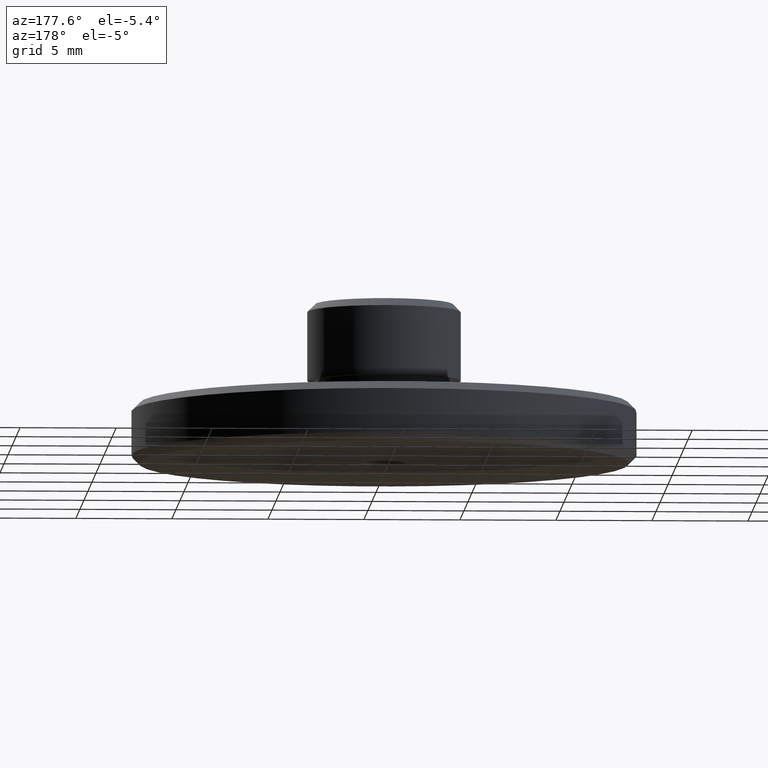
[diagram: clean part render]
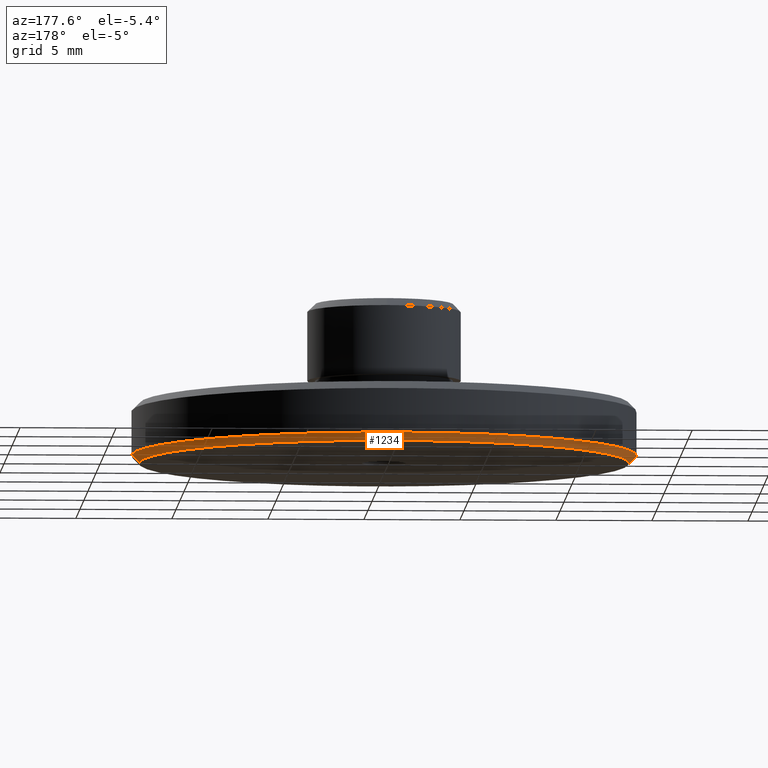
[diagram: same view with one face highlighted and labeled with its STEP entity id]
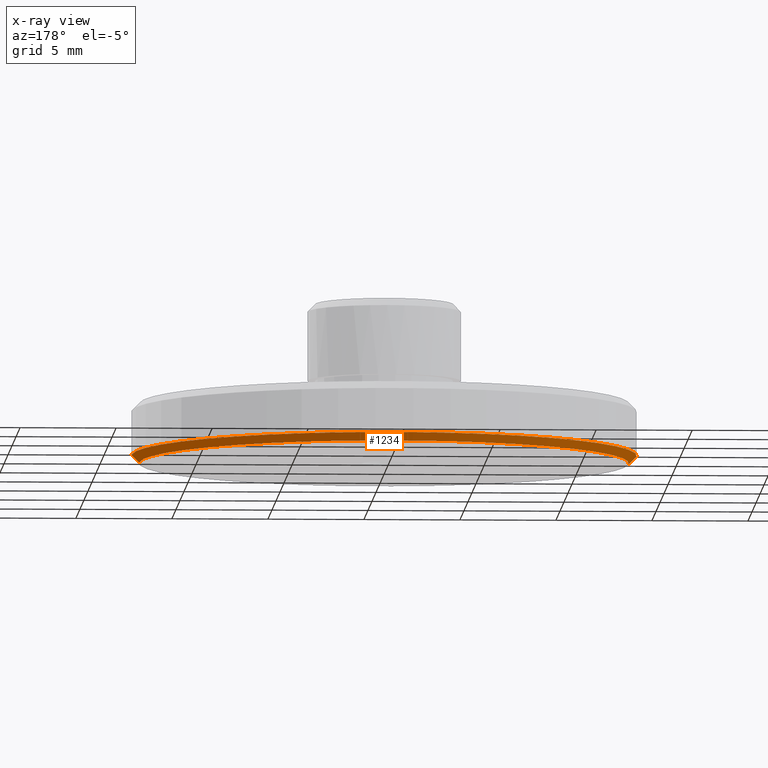
[diagram: x-ray of the same camera — body ghosted, the highlighted face saturated]
A machine part, auxiliary view. The second image highlights one B-rep face of the part: STEP entity #1234.
The next image is the same camera in x-ray: the body ghosted, the highlighted face saturated — about 0% of this face is hidden behind the body in this view.
In plain terms, the highlighted conical surface has half-angle 45 deg.
Its self-contained STEP definition (entity closure, byte-faithful):
#29 = EDGE_CURVE ( 'NONE', #569, #942, #920, .T. ) ;
#39 = EDGE_LOOP ( 'NONE', ( #298, #60, #1151, #215 ) ) ;
#60 = ORIENTED_EDGE ( 'NONE', *, *, #738, .T. ) ;
#95 = VECTOR ( 'NONE', #1338, 1000.000000000000000 ) ;
#169 = DIRECTION ( 'NONE',  ( -0.7071067811865469066, 8.659560562354925463E-17, 0.7071067811865482389 ) ) ;
#178 = CARTESIAN_POINT ( 'NONE',  ( 13.15000000000000036, 0.000000000000000000, 0.4000000000000001887 ) ) ;
#183 = CARTESIAN_POINT ( 'NONE',  ( 0.000000000000000000, 0.000000000000000000, 0.4000000000000001887 ) ) ;
#193 = CARTESIAN_POINT ( 'NONE',  ( 0.000000000000000000, 0.000000000000000000, 0.000000000000000000 ) ) ;
#215 = ORIENTED_EDGE ( 'NONE', *, *, #446, .F. ) ;
#241 = CARTESIAN_POINT ( 'NONE',  ( 0.000000000000000000, 0.000000000000000000, 0.000000000000000000 ) ) ;
#291 = AXIS2_PLACEMENT_3D ( 'NONE', #183, #1619, #1373 ) ;
#298 = ORIENTED_EDGE ( 'NONE', *, *, #29, .F. ) ;
#390 = AXIS2_PLACEMENT_3D ( 'NONE', #241, #641, #1690 ) ;
#420 = CARTESIAN_POINT ( 'NONE',  ( 12.75000000000000178, 0.000000000000000000, 0.000000000000000000 ) ) ;
#446 = EDGE_CURVE ( 'NONE', #942, #757, #1207, .T. ) ;
#447 = VECTOR ( 'NONE', #169, 1000.000000000000000 ) ;
#535 = AXIS2_PLACEMENT_3D ( 'NONE', #193, #966, #1251 ) ;
#569 = VERTEX_POINT ( 'NONE', #1010 ) ;
#641 = DIRECTION ( 'NONE',  ( -0.000000000000000000, 0.000000000000000000, -1.000000000000000000 ) ) ;
#708 = CIRCLE ( 'NONE', #291, 13.15000000000000036 ) ;
#738 = EDGE_CURVE ( 'NONE', #569, #1614, #1348, .T. ) ;
#752 = CARTESIAN_POINT ( 'NONE',  ( -13.15000000000000036, 1.610410540878769525E-15, 0.4000000000000001887 ) ) ;
#757 = VERTEX_POINT ( 'NONE', #178 ) ;
#920 = CIRCLE ( 'NONE', #390, 12.75000000000000178 ) ;
#942 = VERTEX_POINT ( 'NONE', #1401 ) ;
#966 = DIRECTION ( 'NONE',  ( 0.000000000000000000, -0.000000000000000000, 1.000000000000000000 ) ) ;
#1010 = CARTESIAN_POINT ( 'NONE',  ( -12.75000000000000178, 1.585917604895822417E-15, 0.000000000000000000 ) ) ;
#1151 = ORIENTED_EDGE ( 'NONE', *, *, #1308, .T. ) ;
#1207 = LINE ( 'NONE', #420, #95 ) ;
#1234 = ADVANCED_FACE ( 'NONE', ( #1499 ), #1282, .T. ) ;
#1251 = DIRECTION ( 'NONE',  ( 1.000000000000000000, 0.000000000000000000, 0.000000000000000000 ) ) ;
#1282 = CONICAL_SURFACE ( 'NONE', #535, 12.75000000000000178, 0.7853981633974473908 ) ;
#1308 = EDGE_CURVE ( 'NONE', #1614, #757, #708, .T. ) ;
#1338 = DIRECTION ( 'NONE',  ( 0.7071067811865469066, 0.000000000000000000, 0.7071067811865482389 ) ) ;
#1348 = LINE ( 'NONE', #1379, #447 ) ;
#1373 = DIRECTION ( 'NONE',  ( -1.000000000000000000, 0.000000000000000000, -1.236732516143160873E-17 ) ) ;
#1379 = CARTESIAN_POINT ( 'NONE',  ( -12.75000000000000178, 1.561424668912875506E-15, 0.000000000000000000 ) ) ;
#1401 = CARTESIAN_POINT ( 'NONE',  ( 12.75000000000000178, 0.000000000000000000, 0.000000000000000000 ) ) ;
#1499 = FACE_OUTER_BOUND ( 'NONE', #39, .T. ) ;
#1614 = VERTEX_POINT ( 'NONE', #752 ) ;
#1619 = DIRECTION ( 'NONE',  ( 0.000000000000000000, 0.000000000000000000, -1.000000000000000000 ) ) ;
#1690 = DIRECTION ( 'NONE',  ( 1.000000000000000000, 0.000000000000000000, 0.000000000000000000 ) ) ;